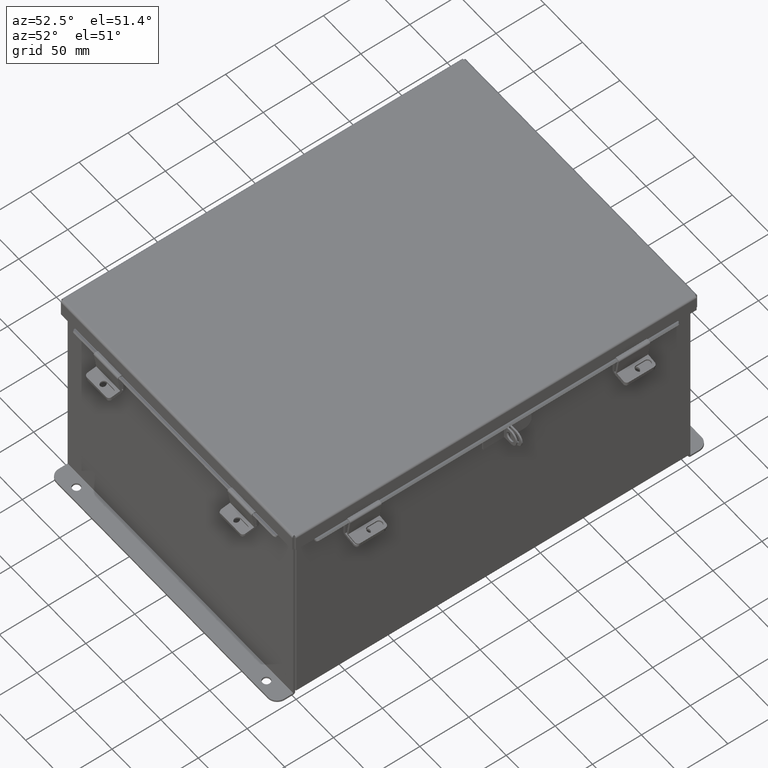
[diagram: clean part render]
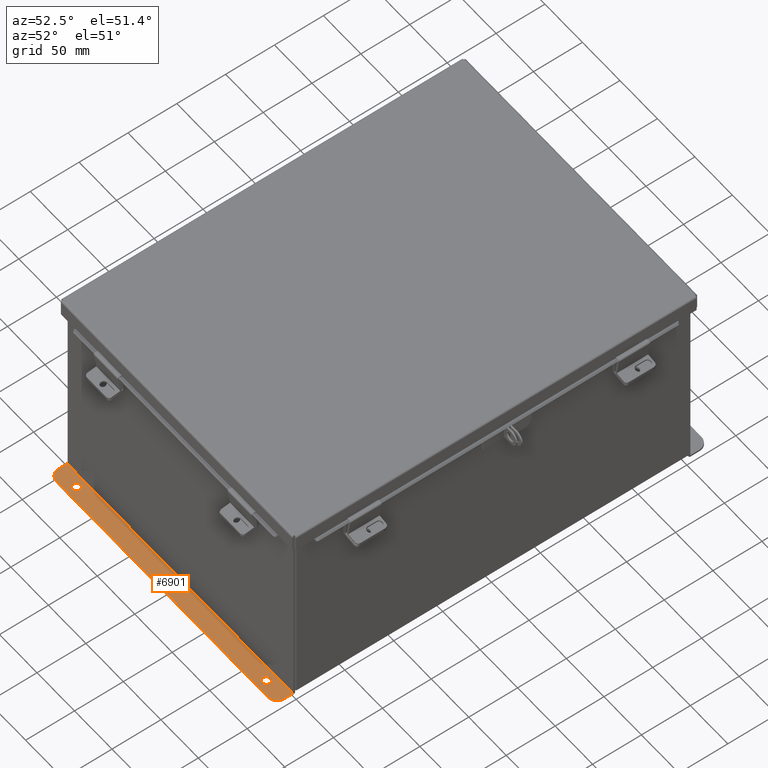
[diagram: same view with one face highlighted and labeled with its STEP entity id]
A machine part, auxiliary view. The second image highlights one B-rep face of the part: STEP entity #6901.
In plain terms, the highlighted planar face has unit normal (0, -0, 1).
Its self-contained STEP definition (entity closure, byte-faithful):
#119 = DIRECTION ( 'NONE',  ( -0.0000000000000000000, -3.702694488566362300E-015, -1.000000000000000000 ) ) ;
#378 = ORIENTED_EDGE ( 'NONE', *, *, #8069, .T. ) ;
#672 = CARTESIAN_POINT ( 'NONE',  ( -5.550299999999990200, 0.7378000000000000100, -4.112300000000002100 ) ) ;
#1091 = CARTESIAN_POINT ( 'NONE',  ( -4.987799999999992000, 0.3627999999999997300, -4.112300000000001200 ) ) ;
#1331 = ORIENTED_EDGE ( 'NONE', *, *, #7311, .F. ) ;
#1379 = AXIS2_PLACEMENT_3D ( 'NONE', #1091, #11912, #2666 ) ;
#1469 = DIRECTION ( 'NONE',  ( 0.0000000000000000000, -1.000000000000000000, 3.502369222646487400E-015 ) ) ;
#2039 = CIRCLE ( 'NONE', #15520, 0.1560000000000001700 ) ;
#2215 = CARTESIAN_POINT ( 'NONE',  ( 5.925300000000008000, 0.3628000000000085000, -4.112299999999996700 ) ) ;
#2471 = CARTESIAN_POINT ( 'NONE',  ( -2.035385365534024800E-024, -1.420560956705417000E-014, -4.112299999999999400 ) ) ;
#2575 = CARTESIAN_POINT ( 'NONE',  ( 5.925300000000008000, 8.741913579725642300E-015, -4.112299999999999400 ) ) ;
#2666 = DIRECTION ( 'NONE',  ( 0.0000000000000000000, -1.000000000000000000, 3.502369222646487400E-015 ) ) ;
#2700 = CARTESIAN_POINT ( 'NONE',  ( 4.987799999999998200, 0.2068000000000083400, -4.112300000000000300 ) ) ;
#3453 = EDGE_LOOP ( 'NONE', ( #18462, #17160 ) ) ;
#3642 = DIRECTION ( 'NONE',  ( 1.000000000000000000, 4.910036603141682400E-031, -0.0000000000000000000 ) ) ;
#3681 = CARTESIAN_POINT ( 'NONE',  ( 5.550300000000008000, 0.3628000000000085000, -4.112300000000001200 ) ) ;
#3752 = FACE_BOUND ( 'NONE', #8855, .T. ) ;
#3967 = CARTESIAN_POINT ( 'NONE',  ( 5.925300000000008000, 0.7378000000000086700, -4.112300000000002100 ) ) ;
#4408 = DIRECTION ( 'NONE',  ( 0.0000000000000000000, 3.702694488566362300E-015, 1.000000000000000000 ) ) ;
#4442 = LINE ( 'NONE', #16862, #11727 ) ;
#4689 = AXIS2_PLACEMENT_3D ( 'NONE', #13751, #4408, #15318 ) ;
#5172 = LINE ( 'NONE', #3967, #12969 ) ;
#5229 = DIRECTION ( 'NONE',  ( 0.0000000000000000000, -1.000000000000000000, 4.370956789862820400E-015 ) ) ;
#5387 = CIRCLE ( 'NONE', #13046, 0.3750000000000000600 ) ;
#5766 = PLANE ( 'NONE',  #18750 ) ;
#5871 = ORIENTED_EDGE ( 'NONE', *, *, #15450, .T. ) ;
#6106 = AXIS2_PLACEMENT_3D ( 'NONE', #15849, #6527, #17404 ) ;
#6138 = VECTOR ( 'NONE', #11835, 39.37007874015748100 ) ;
#6527 = DIRECTION ( 'NONE',  ( -0.0000000000000000000, -3.702694488566362300E-015, -1.000000000000000000 ) ) ;
#6552 = VERTEX_POINT ( 'NONE', #9538 ) ;
#6841 = ORIENTED_EDGE ( 'NONE', *, *, #18711, .T. ) ;
#6901 = ADVANCED_FACE ( 'NONE', ( #7849, #3752, #11501 ), #5766, .T. ) ;
#7129 = VERTEX_POINT ( 'NONE', #17180 ) ;
#7188 = DIRECTION ( 'NONE',  ( -4.919856193148104900E-031, -1.000000000000000000, 3.702694488566362300E-015 ) ) ;
#7311 = EDGE_CURVE ( 'NONE', #19116, #9876, #5172, .T. ) ;
#7654 = EDGE_CURVE ( 'NONE', #6552, #20021, #4442, .T. ) ;
#7740 = EDGE_CURVE ( 'NONE', #17406, #19099, #2039, .T. ) ;
#7849 = FACE_BOUND ( 'NONE', #3453, .T. ) ;
#8005 = ORIENTED_EDGE ( 'NONE', *, *, #15986, .T. ) ;
#8069 = EDGE_CURVE ( 'NONE', #11963, #9876, #5387, .T. ) ;
#8300 = CIRCLE ( 'NONE', #4689, 0.3750000000000000600 ) ;
#8483 = CIRCLE ( 'NONE', #6106, 0.1560000000000001700 ) ;
#8855 = EDGE_LOOP ( 'NONE', ( #5871, #8005 ) ) ;
#8974 = DIRECTION ( 'NONE',  ( -1.000000000000000000, -4.910036603141682400E-031, 0.0000000000000000000 ) ) ;
#9227 = CARTESIAN_POINT ( 'NONE',  ( -5.925299999999991100, 0.01300000000000010700, -4.112299999999995000 ) ) ;
#9370 = EDGE_CURVE ( 'NONE', #19099, #17406, #16544, .T. ) ;
#9390 = CARTESIAN_POINT ( 'NONE',  ( 4.987800000000007100, 0.3628000000000085000, -4.112300000000001200 ) ) ;
#9538 = CARTESIAN_POINT ( 'NONE',  ( 5.925300000000008000, 0.01300000000000885000, -4.112299999999999400 ) ) ;
#9684 = ORIENTED_EDGE ( 'NONE', *, *, #20020, .F. ) ;
#9876 = VERTEX_POINT ( 'NONE', #19614 ) ;
#9986 = AXIS2_PLACEMENT_3D ( 'NONE', #9390, #119, #10962 ) ;
#10724 = DIRECTION ( 'NONE',  ( -0.0000000000000000000, -3.702694488566362300E-015, -1.000000000000000000 ) ) ;
#10962 = DIRECTION ( 'NONE',  ( 0.0000000000000000000, -1.000000000000000000, 3.502369222646487400E-015 ) ) ;
#10967 = LINE ( 'NONE', #12361, #14659 ) ;
#11501 = FACE_OUTER_BOUND ( 'NONE', #15692, .T. ) ;
#11727 = VECTOR ( 'NONE', #8974, 39.37007874015748100 ) ;
#11835 = DIRECTION ( 'NONE',  ( -4.919856193148104900E-031, -1.000000000000000000, 3.702694488566362300E-015 ) ) ;
#11912 = DIRECTION ( 'NONE',  ( -0.0000000000000000000, -3.702694488566362300E-015, -1.000000000000000000 ) ) ;
#11963 = VERTEX_POINT ( 'NONE', #2215 ) ;
#12361 = CARTESIAN_POINT ( 'NONE',  ( -5.925299999999992900, 0.7378000000000000100, -4.112299999999998500 ) ) ;
#12969 = VECTOR ( 'NONE', #3642, 39.37007874015748100 ) ;
#13046 = AXIS2_PLACEMENT_3D ( 'NONE', #3681, #14568, #5229 ) ;
#13539 = DIRECTION ( 'NONE',  ( 0.0000000000000000000, 3.702694488566362300E-015, 1.000000000000000000 ) ) ;
#13751 = CARTESIAN_POINT ( 'NONE',  ( -5.550299999999990200, 0.3628000000000008400, -4.112300000000001200 ) ) ;
#14568 = DIRECTION ( 'NONE',  ( 0.0000000000000000000, 3.702694488566362300E-015, 1.000000000000000000 ) ) ;
#14641 = LINE ( 'NONE', #2575, #6138 ) ;
#14659 = VECTOR ( 'NONE', #20120, 39.37007874015748100 ) ;
#15165 = ORIENTED_EDGE ( 'NONE', *, *, #19827, .F. ) ;
#15169 = CARTESIAN_POINT ( 'NONE',  ( -5.925299999999992900, 0.3627999999999997300, -4.112300000000001200 ) ) ;
#15242 = VERTEX_POINT ( 'NONE', #15169 ) ;
#15318 = DIRECTION ( 'NONE',  ( 0.0000000000000000000, -1.000000000000000000, 4.370956789862820400E-015 ) ) ;
#15450 = EDGE_CURVE ( 'NONE', #7129, #18109, #17257, .T. ) ;
#15520 = AXIS2_PLACEMENT_3D ( 'NONE', #20053, #10724, #1469 ) ;
#15692 = EDGE_LOOP ( 'NONE', ( #1331, #6841, #9684, #15905, #15165, #378 ) ) ;
#15849 = CARTESIAN_POINT ( 'NONE',  ( 4.987800000000007100, 0.3628000000000085000, -4.112300000000001200 ) ) ;
#15905 = ORIENTED_EDGE ( 'NONE', *, *, #7654, .F. ) ;
#15986 = EDGE_CURVE ( 'NONE', #18109, #7129, #8483, .T. ) ;
#16544 = CIRCLE ( 'NONE', #1379, 0.1560000000000001700 ) ;
#16862 = CARTESIAN_POINT ( 'NONE',  ( 5.925300000000008000, 0.01300000000000885000, -4.112299999999999400 ) ) ;
#17160 = ORIENTED_EDGE ( 'NONE', *, *, #9370, .T. ) ;
#17180 = CARTESIAN_POINT ( 'NONE',  ( 4.987799999999998200, 0.5188000000000087000, -4.112300000000001200 ) ) ;
#17257 = CIRCLE ( 'NONE', #9986, 0.1560000000000001700 ) ;
#17404 = DIRECTION ( 'NONE',  ( 0.0000000000000000000, -1.000000000000000000, 3.502369222646487400E-015 ) ) ;
#17406 = VERTEX_POINT ( 'NONE', #17422 ) ;
#17422 = CARTESIAN_POINT ( 'NONE',  ( -4.987800000000000900, 0.5187999999999999300, -4.112300000000001200 ) ) ;
#17706 = CARTESIAN_POINT ( 'NONE',  ( -4.987800000000000900, 0.2067999999999996000, -4.112300000000000300 ) ) ;
#18109 = VERTEX_POINT ( 'NONE', #2700 ) ;
#18462 = ORIENTED_EDGE ( 'NONE', *, *, #7740, .T. ) ;
#18711 = EDGE_CURVE ( 'NONE', #19116, #15242, #8300, .T. ) ;
#18750 = AXIS2_PLACEMENT_3D ( 'NONE', #2471, #13539, #7188 ) ;
#19099 = VERTEX_POINT ( 'NONE', #17706 ) ;
#19116 = VERTEX_POINT ( 'NONE', #672 ) ;
#19614 = CARTESIAN_POINT ( 'NONE',  ( 5.550300000000008000, 0.7378000000000086700, -4.112300000000002100 ) ) ;
#19827 = EDGE_CURVE ( 'NONE', #11963, #6552, #14641, .T. ) ;
#20020 = EDGE_CURVE ( 'NONE', #20021, #15242, #10967, .T. ) ;
#20021 = VERTEX_POINT ( 'NONE', #9227 ) ;
#20053 = CARTESIAN_POINT ( 'NONE',  ( -4.987799999999992000, 0.3627999999999997300, -4.112300000000001200 ) ) ;
#20120 = DIRECTION ( 'NONE',  ( 4.919856193148104900E-031, 1.000000000000000000, -3.702694488566362300E-015 ) ) ;